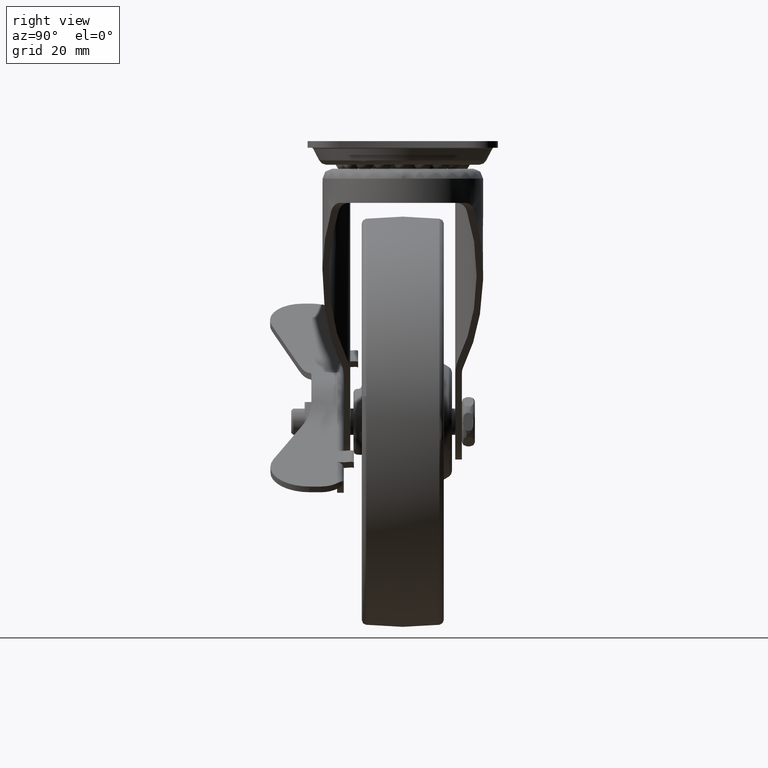
[diagram: clean part render]
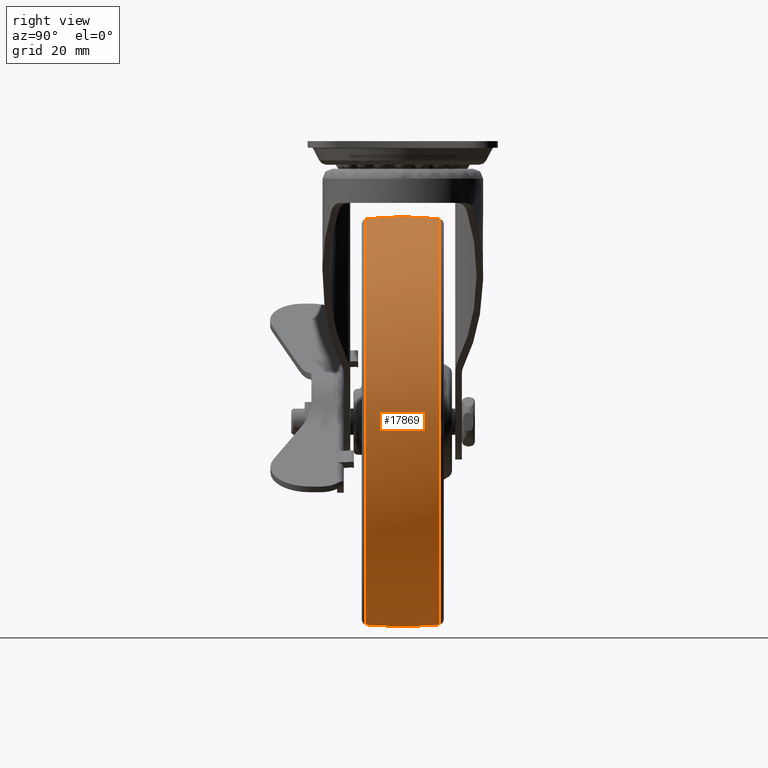
[diagram: same view with one face highlighted and labeled with its STEP entity id]
A machine part, right view. The second image highlights one B-rep face of the part: STEP entity #17869.
In plain terms, the highlighted face is a freeform B-spline surface patch.
Its self-contained STEP definition (entity closure, byte-faithful):
#17647=CARTESIAN_POINT('',(-39.0,-11.167496600345819,-21.625521285991109));
#17648=VERTEX_POINT('',#17647);
#17679=CARTESIAN_POINT('',(22.386579069532541,-11.167496695798629,-75.745071578919124));
#17680=VERTEX_POINT('',#17679);
#17691=CARTESIAN_POINT('',(-39.0,-11.167496600345819,-21.625521285991109));
#17692=CARTESIAN_POINT('',(-35.157846575176251,-11.167496603707409,-21.625074774917859));
#17693=CARTESIAN_POINT('',(-28.870896209217300,-11.167496609662070,-22.213100616066349));
#17694=CARTESIAN_POINT('',(-21.177807145903230,-11.167496617880710,-24.141267048575390));
#17695=CARTESIAN_POINT('',(-14.706710367376861,-11.167496625332809,-26.462003067638850));
#17696=CARTESIAN_POINT('',(-8.091836368124859,-11.167496633595229,-29.670281341794350));
#17697=CARTESIAN_POINT('',(-1.690438591943668,-11.167496642501550,-33.955671490719773));
#17698=CARTESIAN_POINT('',(3.885801633759645,-11.167496651066029,-38.733816369167002));
#17699=CARTESIAN_POINT('',(9.641528779515410,-11.167496660818070,-44.848686038505129));
#17700=CARTESIAN_POINT('',(14.131450987898001,-11.167496669810021,-51.413724667415487));
#17701=CARTESIAN_POINT('',(17.699237053139001,-11.167496678387341,-58.487439032591389));
#17702=CARTESIAN_POINT('',(20.534104562317900,-11.167496686484339,-65.769492816105398));
#17703=CARTESIAN_POINT('',(21.905489164819581,-11.167496692437821,-71.933159494143396));
#17704=CARTESIAN_POINT('',(22.386579069532541,-11.167496695798629,-75.745071578919124));
#17705=B_SPLINE_CURVE_WITH_KNOTS('',3,(#17691,#17692,#17693,#17694,#17695,#17696,#17697,#17698,#17699,#17700,#17701,#17702,#17703,#17704),.UNSPECIFIED.,.F.,.U.,(4,1,1,1,1,1,1,1,1,1,1,4),(0.000000112428751,11.526373792362779,18.861376339484121,23.751382722115689,32.134257565673039,40.866418643251677,46.804148842034422,54.139116043665418,66.014854227974354,70.555573030966059,77.890586432717470,89.416945598656440),.UNSPECIFIED.);
#17706=EDGE_CURVE('',#17648,#17680,#17705,.T.);
#17734=CARTESIAN_POINT('',(-39.0,-11.167496600321741,-145.374478714011590));
#17735=VERTEX_POINT('',#17734);
#17752=CARTESIAN_POINT('',(22.386579069532541,-11.167496695798629,-75.745071578919124));
#17753=CARTESIAN_POINT('',(22.712118265661569,-11.167496694032049,-78.321437344377827));
#17754=CARTESIAN_POINT('',(23.038165180160512,-11.167496690246161,-83.515225207702201));
#17755=CARTESIAN_POINT('',(22.597012981558681,-11.167496684567650,-90.485586809593372));
#17756=CARTESIAN_POINT('',(21.260860434317468,-11.167496677623710,-98.306934532763137));
#17757=CARTESIAN_POINT('',(19.042239789642249,-11.167496670550349,-105.518453593763790));
#17758=CARTESIAN_POINT('',(15.156022347100340,-11.167496661498040,-113.824575934413700));
#17759=CARTESIAN_POINT('',(10.394036673432341,-11.167496652569991,-121.197808627433300));
#17760=CARTESIAN_POINT('',(3.885670092818942,-11.167496642560520,-128.433650614019600));
#17761=CARTESIAN_POINT('',(-3.433625042954576,-11.167496632960230,-134.423945657246690));
#17762=CARTESIAN_POINT('',(-12.167644635392900,-11.167496623039890,-139.582254955821410));
#17763=CARTESIAN_POINT('',(-21.401569233236849,-11.167496614041580,-143.105175107509410));
#17764=CARTESIAN_POINT('',(-30.662781142203620,-11.167496606278950,-145.002540485504990));
#17765=CARTESIAN_POINT('',(-36.266484805258898,-11.167496602180750,-145.374561956807810));
#17766=CARTESIAN_POINT('',(-39.0,-11.167496600321741,-145.374478714011590));
#17767=B_SPLINE_CURVE_WITH_KNOTS('',3,(#17752,#17753,#17754,#17755,#17756,#17757,#17758,#17759,#17760,#17761,#17762,#17763,#17764,#17765,#17766),.UNSPECIFIED.,.F.,.U.,(4,1,1,1,1,1,1,1,1,1,1,1,4),(0.000000122898555,7.790565019213616,15.581153485461980,20.911535338627829,31.572356994568249,38.132875939774593,48.383651573739243,57.814193289815947,67.244969780127093,76.675674144663105,88.156540855753434,96.767217522457585,104.967771225191200),.UNSPECIFIED.);
#17768=EDGE_CURVE('',#17680,#17735,#17767,.T.);
#17777=CARTESIAN_POINT('',(-39.0,12.295925681644970,-21.758828041827996));
#17778=CARTESIAN_POINT('',(-39.0,6.171377913911449,-20.999999999999989));
#17779=CARTESIAN_POINT('',(-39.0,-8.449784E-015,-20.999999999999989));
#17780=CARTESIAN_POINT('',(-38.999999999999993,-6.171388290532376,-20.999999999999993));
#17781=CARTESIAN_POINT('',(-39.0,-12.295946199261792,-21.758830583951397));
#17782=CARTESIAN_POINT('',(22.741171958172004,12.295925681644965,-21.758828041827993));
#17783=CARTESIAN_POINT('',(23.500000000000011,6.171377913911448,-21.0));
#17784=CARTESIAN_POINT('',(23.500000000000004,-8.449784E-015,-20.999999999999986));
#17785=CARTESIAN_POINT('',(23.500000000000014,-6.171388290532376,-20.999999999999989));
#17786=CARTESIAN_POINT('',(22.741169416048603,-12.295946199261788,-21.758830583951390));
#17787=CARTESIAN_POINT('',(22.741171958172018,12.295925681644970,-83.500000000000014));
#17788=CARTESIAN_POINT('',(23.500000000000011,6.171377913911449,-83.500000000000000));
#17789=CARTESIAN_POINT('',(23.500000000000011,-8.449784E-015,-83.500000000000000));
#17790=CARTESIAN_POINT('',(23.500000000000014,-6.171388290532376,-83.500000000000000));
#17791=CARTESIAN_POINT('',(22.741169416048614,-12.295946199261792,-83.500000000000000));
#17792=CARTESIAN_POINT('',(22.741171958172004,12.295925681644965,-145.241171958172000));
#17793=CARTESIAN_POINT('',(23.500000000000011,6.171377913911448,-146.000000000000090));
#17794=CARTESIAN_POINT('',(23.500000000000004,-8.449784E-015,-146.000000000000090));
#17795=CARTESIAN_POINT('',(23.500000000000014,-6.171388290532376,-146.000000000000060));
#17796=CARTESIAN_POINT('',(22.741169416048603,-12.295946199261788,-145.241169416048620));
#17797=CARTESIAN_POINT('',(-39.0,12.295925681644970,-145.241171958172030));
#17798=CARTESIAN_POINT('',(-39.0,6.171377913911449,-146.000000000000060));
#17799=CARTESIAN_POINT('',(-39.0,-8.449784E-015,-146.0));
#17800=CARTESIAN_POINT('',(-38.999999999999993,-6.171388290532376,-146.0));
#17801=CARTESIAN_POINT('',(-39.0,-12.295946199261792,-145.241169416048560));
#17809=(BOUNDED_SURFACE()B_SPLINE_SURFACE(2,2,((#17777,#17782,#17787,#17792,#17797),(#17778,#17783,#17788,#17793,#17798),(#17779,#17784,#17789,#17794,#17799),(#17780,#17785,#17790,#17795,#17800),(#17781,#17786,#17791,#17796,#17801)),.UNSPECIFIED.,.F.,.F.,.U.)B_SPLINE_SURFACE_WITH_KNOTS((3,2,3),(3,2,3),(0.0,12.527835294324801,25.055691263151090),(0.0,103.553390593273800,207.106781186547610),.UNSPECIFIED.)GEOMETRIC_REPRESENTATION_ITEM()RATIONAL_B_SPLINE_SURFACE(((0.966988568807350,0.683764174333552,0.966988568807350,0.683764174333552,0.966988568807350),(0.981488501510160,0.694017175074457,0.981488501510160,0.694017175074457,0.981488501510160),(1.0,0.707106781186548,1.0,0.707106781186548,1.0),(0.981488470960908,0.694017153472874,0.981488470960908,0.694017153472874,0.981488470960908),(0.966988520949312,0.683764140492808,0.966988520949312,0.683764140492808,0.966988520949312)))REPRESENTATION_ITEM('')SURFACE());
#17810=CARTESIAN_POINT('',(-39.0,11.167479376650549,-21.625519350434011));
#17811=VERTEX_POINT('',#17810);
#17812=CARTESIAN_POINT('',(-39.0,11.167479376650549,-21.625519350434011));
#17813=CARTESIAN_POINT('',(-39.000000000000199,3.753606351596667,-20.791392347890469));
#17814=CARTESIAN_POINT('',(-38.999999999999950,-3.753621450653056,-20.791582376143189));
#17815=CARTESIAN_POINT('',(-39.0,-11.167496600345819,-21.625521285991109));
#17816=B_SPLINE_CURVE_WITH_KNOTS('',3,(#17812,#17813,#17814,#17815),.UNSPECIFIED.,.F.,.U.,(4,4),(1.917797E-009,22.381674154833540),.UNSPECIFIED.);
#17817=EDGE_CURVE('',#17811,#17648,#17816,.T.);
#17818=ORIENTED_EDGE('',*,*,#17817,.T.);
#17819=ORIENTED_EDGE('',*,*,#17706,.T.);
#17820=ORIENTED_EDGE('',*,*,#17768,.T.);
#17821=CARTESIAN_POINT('',(-39.0,11.167479376598530,-145.374480649571890));
#17822=VERTEX_POINT('',#17821);
#17823=CARTESIAN_POINT('',(-39.0,11.167479376598530,-145.374480649571890));
#17824=CARTESIAN_POINT('',(-38.999999999999908,3.753605952186529,-146.208351495894990));
#17825=CARTESIAN_POINT('',(-39.000000000000050,-3.753625269054119,-146.208647749078100));
#17826=CARTESIAN_POINT('',(-39.0,-11.167496600321741,-145.374478714011590));
#17827=B_SPLINE_CURVE_WITH_KNOTS('',3,(#17823,#17824,#17825,#17826),.UNSPECIFIED.,.F.,.U.,(4,4),(1.921777E-009,22.381674154756919),.UNSPECIFIED.);
#17828=EDGE_CURVE('',#17822,#17735,#17827,.T.);
#17829=ORIENTED_EDGE('',*,*,#17828,.F.);
#17830=CARTESIAN_POINT('',(22.635247783619480,11.167480174429510,-88.935746989824423));
#17831=VERTEX_POINT('',#17830);
#17832=CARTESIAN_POINT('',(22.635247783619480,11.167480174429510,-88.935746989824423));
#17833=CARTESIAN_POINT('',(22.310254320818640,11.167480148355860,-92.624903545782004));
#17834=CARTESIAN_POINT('',(21.355354254601369,11.167480107381420,-97.937351270281724));
#17835=CARTESIAN_POINT('',(18.998718304582990,11.167480043041371,-105.343096503152100));
#17836=CARTESIAN_POINT('',(16.727355570134421,11.167479993034670,-110.618907434976510));
#17837=CARTESIAN_POINT('',(13.430086797321209,11.167479931364641,-116.583333745748600));
#17838=CARTESIAN_POINT('',(8.889297813760170,11.167479857697490,-123.050673761210310));
#17839=CARTESIAN_POINT('',(3.008166888675990,11.167479776616799,-129.204164151774990));
#17840=CARTESIAN_POINT('',(-3.749500276994811,11.167479694592380,-134.546874634366110));
#17841=CARTESIAN_POINT('',(-10.612761466818210,11.167479619475190,-138.702939291187500));
#17842=CARTESIAN_POINT('',(-18.426002090032199,11.167479542842459,-142.056689585621310));
#17843=CARTESIAN_POINT('',(-27.889953526121630,11.167479459366630,-144.669245831357300));
#17844=CARTESIAN_POINT('',(-34.818668781695351,11.167479406033280,-145.375137163968790));
#17845=CARTESIAN_POINT('',(-39.0,11.167479376598530,-145.374480649571890));
#17846=B_SPLINE_CURVE_WITH_KNOTS('',3,(#17832,#17833,#17834,#17835,#17836,#17837,#17838,#17839,#17840,#17841,#17842,#17843,#17844,#17845),.UNSPECIFIED.,.F.,.U.,(4,1,1,1,1,1,1,1,1,1,1,4),(0.000000114037221,11.110249841019151,16.127852755794141,23.295791118508401,28.313368419104020,36.556527400437709,46.949933519720652,53.759448065635667,62.361024031047762,70.962567040807798,79.205729650077132,91.749570069435705),.UNSPECIFIED.);
#17847=EDGE_CURVE('',#17831,#17822,#17846,.T.);
#17848=ORIENTED_EDGE('',*,*,#17847,.F.);
#17849=CARTESIAN_POINT('',(-39.0,11.167479376650549,-21.625519350434011));
#17850=CARTESIAN_POINT('',(-36.327236504812710,11.167479392428490,-21.625436204308318));
#17851=CARTESIAN_POINT('',(-30.848059092624549,11.167479427066951,-21.981052245683479));
#17852=CARTESIAN_POINT('',(-22.836209396064469,11.167479484706121,-23.585280365068900));
#17853=CARTESIAN_POINT('',(-14.348925162363200,11.167479553578080,-26.496579455980061));
#17854=CARTESIAN_POINT('',(-6.852582633531720,11.167479622959590,-30.394385634689339));
#17855=CARTESIAN_POINT('',(0.561098812728439,11.167479700759200,-35.673679589134721));
#17856=CARTESIAN_POINT('',(7.495005261050967,11.167479783740291,-42.196152746708890));
#17857=CARTESIAN_POINT('',(13.193949125724860,11.167479866626699,-49.834767290464420));
#17858=CARTESIAN_POINT('',(17.492643757010100,11.167479943719179,-57.856973082867533));
#17859=CARTESIAN_POINT('',(20.223005227087629,11.167480005814859,-64.989020017928496));
#17860=CARTESIAN_POINT('',(22.163662488503348,11.167480069293809,-73.058738408794696));
#17861=CARTESIAN_POINT('',(23.003337746006480,11.167480124919431,-80.918753583190565));
#17862=CARTESIAN_POINT('',(22.858365558000070,11.167480159442190,-86.406441837872222));
#17863=CARTESIAN_POINT('',(22.635247783619480,11.167480174429510,-88.935746989824423));
#17864=B_SPLINE_CURVE_WITH_KNOTS('',3,(#17849,#17850,#17851,#17852,#17853,#17854,#17855,#17856,#17857,#17858,#17859,#17860,#17861,#17862,#17863),.UNSPECIFIED.,.F.,.U.,(4,1,1,1,1,1,1,1,1,1,1,1,4),(0.000000117653897,8.018293362872015,16.437623303935649,24.456032366947682,34.879926751580129,41.695552408398363,51.718424526233349,63.345071278760891,70.160716614818426,78.980964381555253,86.197529202244269,95.017749023445518,102.635147940654800),.UNSPECIFIED.);
#17865=EDGE_CURVE('',#17811,#17831,#17864,.T.);
#17866=ORIENTED_EDGE('',*,*,#17865,.F.);
#17867=EDGE_LOOP('',(#17818,#17819,#17820,#17829,#17848,#17866));
#17868=FACE_OUTER_BOUND('',#17867,.T.);
#17869=ADVANCED_FACE('',(#17868),#17809,.T.);